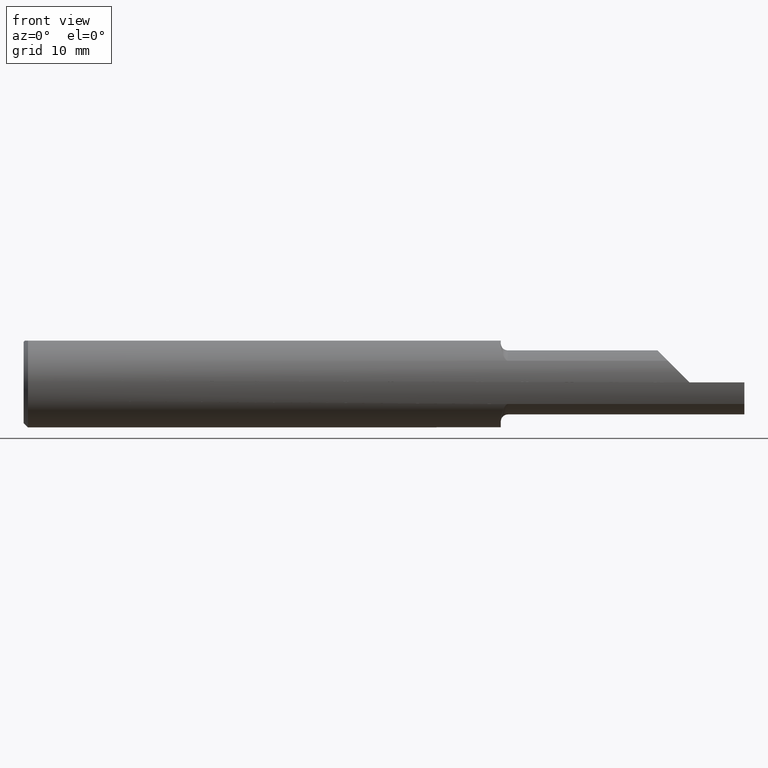
[diagram: clean part render]
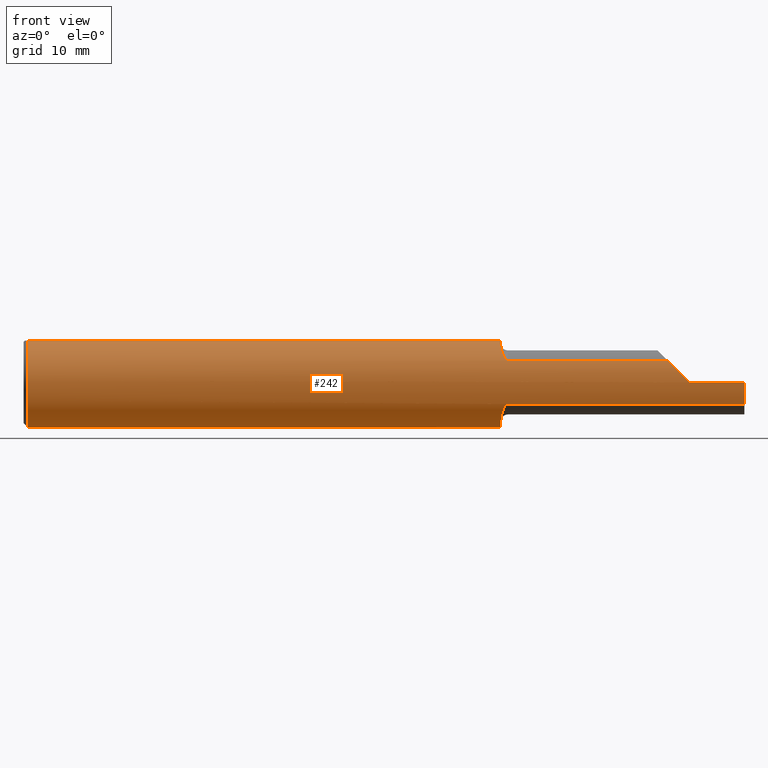
[diagram: same view with one face highlighted and labeled with its STEP entity id]
A machine part, front view. The second image highlights one B-rep face of the part: STEP entity #242.
In plain terms, the highlighted cylindrical surface (partial cylindrical patch) has radius 3.9649 mm, axis along (-1, -0, -0).
Its self-contained STEP definition (entity closure, byte-faithful):
#1 = CARTESIAN_POINT ( 'NONE',  ( 2.310000000000000053, -0.1560999999999999888, -3.979970649922725226E-17 ) ) ;
#3 = VECTOR ( 'NONE', #726, 39.37007874015748143 ) ;
#19 = CIRCLE ( 'NONE', #566, 0.1560999999999999888 ) ;
#23 = DIRECTION ( 'NONE',  ( 1.000000000000000000, 0.000000000000000000, 0.000000000000000000 ) ) ;
#32 = VERTEX_POINT ( 'NONE', #663 ) ;
#36 = CARTESIAN_POINT ( 'NONE',  ( 1.676348515781200810, -0.1364107636049786132, 0.07590013438261603018 ) ) ;
#39 = CARTESIAN_POINT ( 'NONE',  ( 1.678086506300958236, -0.1368622504537204410, 0.07507286061382699438 ) ) ;
#55 = ORIENTED_EDGE ( 'NONE', *, *, #697, .T. ) ;
#56 = CARTESIAN_POINT ( 'NONE',  ( 2.500000000000000000, -0.05756040305626781983, 0.1450999999999999512 ) ) ;
#59 = VERTEX_POINT ( 'NONE', #830 ) ;
#70 = DIRECTION ( 'NONE',  ( 0.000000000000000000, 0.000000000000000000, -1.000000000000000000 ) ) ;
#73 = EDGE_CURVE ( 'NONE', #32, #401, #579, .T. ) ;
#90 = ORIENTED_EDGE ( 'NONE', *, *, #807, .T. ) ;
#96 = VERTEX_POINT ( 'NONE', #152 ) ;
#108 = EDGE_LOOP ( 'NONE', ( #383, #650, #831, #795, #134, #413, #55, #175, #90, #338, #235, #953, #591, #637 ) ) ;
#113 = VERTEX_POINT ( 'NONE', #370 ) ;
#114 = CARTESIAN_POINT ( 'NONE',  ( 1.667545102296319914, -0.1302115092214859715, 0.08616258549502014974 ) ) ;
#118 = LINE ( 'NONE', #419, #439 ) ;
#134 = ORIENTED_EDGE ( 'NONE', *, *, #380, .T. ) ;
#136 = CARTESIAN_POINT ( 'NONE',  ( 2.310000000000000053, -0.1560999679692471886, 9.999999999973052634E-05 ) ) ;
#138 = CIRCLE ( 'NONE', #326, 0.1560999999999999888 ) ;
#146 = CARTESIAN_POINT ( 'NONE',  ( 1.673506495904680591, -0.1352163519649314249, -0.07800775850415037072 ) ) ;
#152 = CARTESIAN_POINT ( 'NONE',  ( 0.01499999999999970281, 0.05756040305626781983, 0.1450999999999999512 ) ) ;
#154 = EDGE_CURVE ( 'NONE', #347, #764, #532, .T. ) ;
#156 = CARTESIAN_POINT ( 'NONE',  ( 1.680000000000000160, -0.1368622504537204410, -0.07507286061382698050 ) ) ;
#175 = ORIENTED_EDGE ( 'NONE', *, *, #197, .F. ) ;
#188 = DIRECTION ( 'NONE',  ( 0.000000000000000000, 0.000000000000000000, 1.000000000000000000 ) ) ;
#196 = CARTESIAN_POINT ( 'NONE',  ( 2.258128869355540136, -0.1495342103855425986, 0.05197113064445998271 ) ) ;
#197 = EDGE_CURVE ( 'NONE', #59, #211, #324, .T. ) ;
#204 = CARTESIAN_POINT ( 'NONE',  ( 1.680000000000000160, -0.1368622504537204410, -0.07507286061382698050 ) ) ;
#208 = DIRECTION ( 'NONE',  ( -1.000000000000000000, -0.000000000000000000, -0.000000000000000000 ) ) ;
#211 = VERTEX_POINT ( 'NONE', #559 ) ;
#228 = CARTESIAN_POINT ( 'NONE',  ( 0.01499999999999970281, 0.000000000000000000, 0.000000000000000000 ) ) ;
#232 = AXIS2_PLACEMENT_3D ( 'NONE', #713, #552, #188 ) ;
#235 = ORIENTED_EDGE ( 'NONE', *, *, #900, .T. ) ;
#238 = CARTESIAN_POINT ( 'NONE',  ( 1.656469879655009692, -0.1049921135599801297, -0.1164346218518444720 ) ) ;
#242 = ADVANCED_FACE ( 'NONE', ( #710 ), #925, .T. ) ;
#243 = CARTESIAN_POINT ( 'NONE',  ( 1.655000000000000249, -0.08082776769509972259, 0.1335443071397166837 ) ) ;
#248 = CARTESIAN_POINT ( 'NONE',  ( 1.673464868753673951, -0.1351961852369925332, 0.07804305429669788907 ) ) ;
#250 = CIRCLE ( 'NONE', #407, 0.1560999999999999888 ) ;
#257 = CARTESIAN_POINT ( 'NONE',  ( 1.661300778209995777, -0.1198130594394493237, 0.1003199648005457800 ) ) ;
#260 = EDGE_CURVE ( 'NONE', #866, #950, #783, .T. ) ;
#264 = DIRECTION ( 'NONE',  ( 1.000000000000000000, 0.000000000000000000, 0.000000000000000000 ) ) ;
#267 = DIRECTION ( 'NONE',  ( 1.000000000000000000, 0.000000000000000000, 0.000000000000000000 ) ) ;
#276 = CARTESIAN_POINT ( 'NONE',  ( 1.655000000000000249, 0.05756040305626781289, 0.1450999999999999512 ) ) ;
#281 = LINE ( 'NONE', #56, #658 ) ;
#282 = CARTESIAN_POINT ( 'NONE',  ( 2.310000000000000053, -0.1560999679692471886, 9.999999999973052634E-05 ) ) ;
#317 = DIRECTION ( 'NONE',  ( 0.000000000000000000, 0.000000000000000000, -1.000000000000000000 ) ) ;
#321 =( BOUNDED_CURVE ( )  B_SPLINE_CURVE ( 3, ( #282, #737, #196, #869 ),
 .UNSPECIFIED., .F., .T. ) 
 B_SPLINE_CURVE_WITH_KNOTS ( ( 4, 4 ),
 ( 4.713029595418895212, 5.214101826882463264 ),
 .UNSPECIFIED. ) 
 CURVE ( )  GEOMETRIC_REPRESENTATION_ITEM ( )  RATIONAL_B_SPLINE_CURVE ( ( 1.000000000000000000, 0.9791864302132653464, 0.9791864302132653464, 1.000000000000000000 ) ) 
 REPRESENTATION_ITEM ( '' )  );
#324 = CIRCLE ( 'NONE', #357, 0.1560999999999999888 ) ;
#326 = AXIS2_PLACEMENT_3D ( 'NONE', #369, #444, #521 ) ;
#331 = CARTESIAN_POINT ( 'NONE',  ( 1.669135453872435892, -0.1320388560634702391, 0.08332276230954657747 ) ) ;
#337 = CARTESIAN_POINT ( 'NONE',  ( 2.030499999999999972, -0.1368622504537204410, 0.07507286061382698050 ) ) ;
#338 = ORIENTED_EDGE ( 'NONE', *, *, #154, .T. ) ;
#339 = CARTESIAN_POINT ( 'NONE',  ( 1.655000000000000249, -0.08722028877555598747, 0.1296752301274217145 ) ) ;
#345 = LINE ( 'NONE', #583, #3 ) ;
#347 = VERTEX_POINT ( 'NONE', #705 ) ;
#357 = AXIS2_PLACEMENT_3D ( 'NONE', #636, #640, #844 ) ;
#369 = CARTESIAN_POINT ( 'NONE',  ( 2.500000000000000000, 0.000000000000000000, 0.000000000000000000 ) ) ;
#370 = CARTESIAN_POINT ( 'NONE',  ( 2.500000000000000000, -0.1560999999999999333, -3.979970649922725226E-17 ) ) ;
#374 = AXIS2_PLACEMENT_3D ( 'NONE', #228, #530, #470 ) ;
#377 = CARTESIAN_POINT ( 'NONE',  ( 1.655000000000000249, 0.000000000000000000, 0.000000000000000000 ) ) ;
#378 = VERTEX_POINT ( 'NONE', #204 ) ;
#380 = EDGE_CURVE ( 'NONE', #835, #950, #321, .T. ) ;
#381 = CARTESIAN_POINT ( 'NONE',  ( 1.676349781358731805, -0.1364086230541974587, -0.07590362166592530546 ) ) ;
#383 = ORIENTED_EDGE ( 'NONE', *, *, #445, .F. ) ;
#386 = CARTESIAN_POINT ( 'NONE',  ( 1.655000000000000471, -0.09362651965208500238, -0.1257978552532720284 ) ) ;
#395 = CARTESIAN_POINT ( 'NONE',  ( 1.655398932116762811, -0.09332769694267488425, 0.1253468102978375076 ) ) ;
#401 = VERTEX_POINT ( 'NONE', #276 ) ;
#407 = AXIS2_PLACEMENT_3D ( 'NONE', #934, #433, #941 ) ;
#413 = ORIENTED_EDGE ( 'NONE', *, *, #260, .F. ) ;
#419 = CARTESIAN_POINT ( 'NONE',  ( 2.500000000000000000, 0.05756040305626781983, 0.1450999999999999512 ) ) ;
#432 = B_SPLINE_CURVE_WITH_KNOTS ( 'NONE', 3,
 ( #703, #39, #36, #248, #549, #331, #114, #634, #257, #562, #855, #395, #339, #243 ),
 .UNSPECIFIED., .F., .F.,
 ( 4, 2, 2, 2, 2, 2, 4 ),
 ( 0.000000000000000000, 0.0001427501031775191276, 0.0002855002063550382552, 0.0005710004127100769440, 0.001142000825420161261, 0.001713001238130245360, 0.002284001650840329460 ),
 .UNSPECIFIED. ) ;
#433 = DIRECTION ( 'NONE',  ( -1.000000000000000000, -0.000000000000000000, -0.000000000000000000 ) ) ;
#439 = VECTOR ( 'NONE', #267, 39.37007874015748143 ) ;
#444 = DIRECTION ( 'NONE',  ( 1.000000000000000000, 0.000000000000000000, 0.000000000000000000 ) ) ;
#445 = EDGE_CURVE ( 'NONE', #728, #378, #947, .T. ) ;
#470 = DIRECTION ( 'NONE',  ( 0.000000000000000000, 0.000000000000000000, -1.000000000000000000 ) ) ;
#483 = EDGE_CURVE ( 'NONE', #113, #728, #138, .T. ) ;
#492 = EDGE_CURVE ( 'NONE', #32, #378, #504, .T. ) ;
#504 = B_SPLINE_CURVE_WITH_KNOTS ( 'NONE', 3,
 ( #816, #386, #238, #904, #600, #890, #829, #681, #146, #381, #618, #156 ),
 .UNSPECIFIED., .F., .F.,
 ( 4, 2, 2, 2, 2, 4 ),
 ( 0.000000000000000000, 0.001123756246128511729, 0.001685634369192764558, 0.001966573430724894659, 0.002107042961490958842, 0.002247512492257023459 ),
 .UNSPECIFIED. ) ;
#514 = VERTEX_POINT ( 'NONE', #1 ) ;
#521 = DIRECTION ( 'NONE',  ( 0.000000000000000000, 0.000000000000000000, -1.000000000000000000 ) ) ;
#530 = DIRECTION ( 'NONE',  ( 1.000000000000000000, -0.000000000000000000, -0.000000000000000000 ) ) ;
#532 = CIRCLE ( 'NONE', #374, 0.1560999999999999888 ) ;
#534 = VECTOR ( 'NONE', #208, 39.37007874015748143 ) ;
#549 = CARTESIAN_POINT ( 'NONE',  ( 1.672300575926264798, -0.1344565892346399338, 0.07931625727899710432 ) ) ;
#552 = DIRECTION ( 'NONE',  ( -1.000000000000000000, -0.000000000000000000, -0.000000000000000000 ) ) ;
#559 = CARTESIAN_POINT ( 'NONE',  ( 1.655000000000000249, -0.08082776769509972259, 0.1335443071397166837 ) ) ;
#562 = CARTESIAN_POINT ( 'NONE',  ( 1.658112206751179096, -0.1100485138537332513, 0.1109440811778998615 ) ) ;
#566 = AXIS2_PLACEMENT_3D ( 'NONE', #611, #597, #70 ) ;
#579 = CIRCLE ( 'NONE', #841, 0.1560999999999999888 ) ;
#583 = CARTESIAN_POINT ( 'NONE',  ( 2.500000000000000000, -0.1560999999999999888, -3.979970649922725226E-17 ) ) ;
#591 = ORIENTED_EDGE ( 'NONE', *, *, #73, .F. ) ;
#593 = CARTESIAN_POINT ( 'NONE',  ( 2.030499999999999972, -0.1368622504537204410, -0.07507286061382698050 ) ) ;
#597 = DIRECTION ( 'NONE',  ( 1.000000000000000000, -0.000000000000000000, -0.000000000000000000 ) ) ;
#600 = CARTESIAN_POINT ( 'NONE',  ( 1.663312382054486394, -0.1243204233981918816, -0.09465517963088553033 ) ) ;
#611 = CARTESIAN_POINT ( 'NONE',  ( 0.01499999999999970281, 0.000000000000000000, 0.000000000000000000 ) ) ;
#618 = CARTESIAN_POINT ( 'NONE',  ( 1.678106053287834909, -0.1368622504537226614, -0.07507286061382434372 ) ) ;
#634 = CARTESIAN_POINT ( 'NONE',  ( 1.663324357153332267, -0.1243322553945040709, 0.09463600456597347221 ) ) ;
#636 = CARTESIAN_POINT ( 'NONE',  ( 1.655000000000000249, 0.000000000000000000, 0.000000000000000000 ) ) ;
#637 = ORIENTED_EDGE ( 'NONE', *, *, #492, .T. ) ;
#640 = DIRECTION ( 'NONE',  ( 1.000000000000000000, 0.000000000000000000, 0.000000000000000000 ) ) ;
#648 = CARTESIAN_POINT ( 'NONE',  ( 2.500000000000000000, -0.1368622504537203854, -0.07507286061382703601 ) ) ;
#650 = ORIENTED_EDGE ( 'NONE', *, *, #483, .F. ) ;
#658 = VECTOR ( 'NONE', #938, 39.37007874015748143 ) ;
#663 = CARTESIAN_POINT ( 'NONE',  ( 1.655000000000000249, -0.08082776769509972259, -0.1335443071397166837 ) ) ;
#681 = CARTESIAN_POINT ( 'NONE',  ( 1.672325674773646353, -0.1344725336059487408, -0.07928898134248256457 ) ) ;
#697 = EDGE_CURVE ( 'NONE', #866, #211, #432, .T. ) ;
#703 = CARTESIAN_POINT ( 'NONE',  ( 1.680000000000000160, -0.1368622504537204410, 0.07507286061382698050 ) ) ;
#705 = CARTESIAN_POINT ( 'NONE',  ( 0.01499999999999970975, -0.05756040305626781983, 0.1450999999999999512 ) ) ;
#710 = FACE_OUTER_BOUND ( 'NONE', #108, .T. ) ;
#713 = CARTESIAN_POINT ( 'NONE',  ( 2.500000000000000000, 0.000000000000000000, 0.000000000000000000 ) ) ;
#726 = DIRECTION ( 'NONE',  ( -1.000000000000000000, -0.000000000000000000, -0.000000000000000000 ) ) ;
#728 = VERTEX_POINT ( 'NONE', #648 ) ;
#732 = VECTOR ( 'NONE', #264, 39.37007874015748143 ) ;
#737 = CARTESIAN_POINT ( 'NONE',  ( 2.283651030168674989, -0.1560830884207283498, 0.02644896983132509483 ) ) ;
#764 = VERTEX_POINT ( 'NONE', #802 ) ;
#783 = LINE ( 'NONE', #337, #732 ) ;
#790 = EDGE_CURVE ( 'NONE', #113, #514, #345, .T. ) ;
#792 = CARTESIAN_POINT ( 'NONE',  ( 1.680000000000000160, -0.1368622504537204410, 0.07507286061382698050 ) ) ;
#795 = ORIENTED_EDGE ( 'NONE', *, *, #818, .T. ) ;
#802 = CARTESIAN_POINT ( 'NONE',  ( 0.01499999999999970281, 0.000000000000000000, -0.1560999999999999888 ) ) ;
#807 = EDGE_CURVE ( 'NONE', #59, #347, #281, .T. ) ;
#816 = CARTESIAN_POINT ( 'NONE',  ( 1.655000000000000249, -0.08082776769509972259, -0.1335443071397166837 ) ) ;
#818 = EDGE_CURVE ( 'NONE', #514, #835, #250, .T. ) ;
#824 = EDGE_CURVE ( 'NONE', #96, #401, #118, .T. ) ;
#829 = CARTESIAN_POINT ( 'NONE',  ( 1.669174461442129775, -0.1320749731185603126, -0.08326458372355867443 ) ) ;
#830 = CARTESIAN_POINT ( 'NONE',  ( 1.655000000000000249, -0.05756040305626783371, 0.1450999999999999512 ) ) ;
#831 = ORIENTED_EDGE ( 'NONE', *, *, #790, .T. ) ;
#832 = CARTESIAN_POINT ( 'NONE',  ( 2.235027139386173367, -0.1368622504537203854, 0.07507286061382700826 ) ) ;
#835 = VERTEX_POINT ( 'NONE', #136 ) ;
#841 = AXIS2_PLACEMENT_3D ( 'NONE', #377, #23, #317 ) ;
#844 = DIRECTION ( 'NONE',  ( 0.000000000000000000, 0.000000000000000000, -1.000000000000000000 ) ) ;
#855 = CARTESIAN_POINT ( 'NONE',  ( 1.656962149267435569, -0.1047579505689460039, 0.1159640188207535921 ) ) ;
#866 = VERTEX_POINT ( 'NONE', #792 ) ;
#869 = CARTESIAN_POINT ( 'NONE',  ( 2.235027139386173367, -0.1368622504537203854, 0.07507286061382700826 ) ) ;
#890 = CARTESIAN_POINT ( 'NONE',  ( 1.667567871908216093, -0.1302407872897889951, -0.08611932130684239739 ) ) ;
#900 = EDGE_CURVE ( 'NONE', #764, #96, #19, .T. ) ;
#904 = CARTESIAN_POINT ( 'NONE',  ( 1.661298582722805284, -0.1198197303235669781, -0.1003181488768663532 ) ) ;
#925 = CYLINDRICAL_SURFACE ( 'NONE', #232, 0.1560999999999999888 ) ;
#934 = CARTESIAN_POINT ( 'NONE',  ( 2.310000000000000053, 0.000000000000000000, 0.000000000000000000 ) ) ;
#938 = DIRECTION ( 'NONE',  ( -1.000000000000000000, -0.000000000000000000, -0.000000000000000000 ) ) ;
#941 = DIRECTION ( 'NONE',  ( 0.000000000000000000, 0.000000000000000000, 1.000000000000000000 ) ) ;
#947 = LINE ( 'NONE', #593, #534 ) ;
#950 = VERTEX_POINT ( 'NONE', #832 ) ;
#953 = ORIENTED_EDGE ( 'NONE', *, *, #824, .T. ) ;